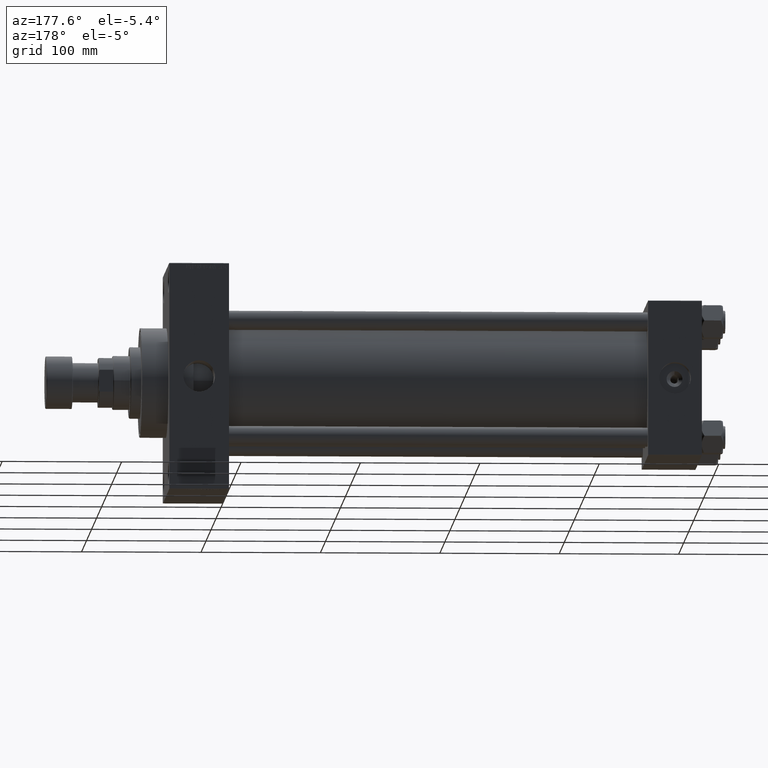
[diagram: clean part render]
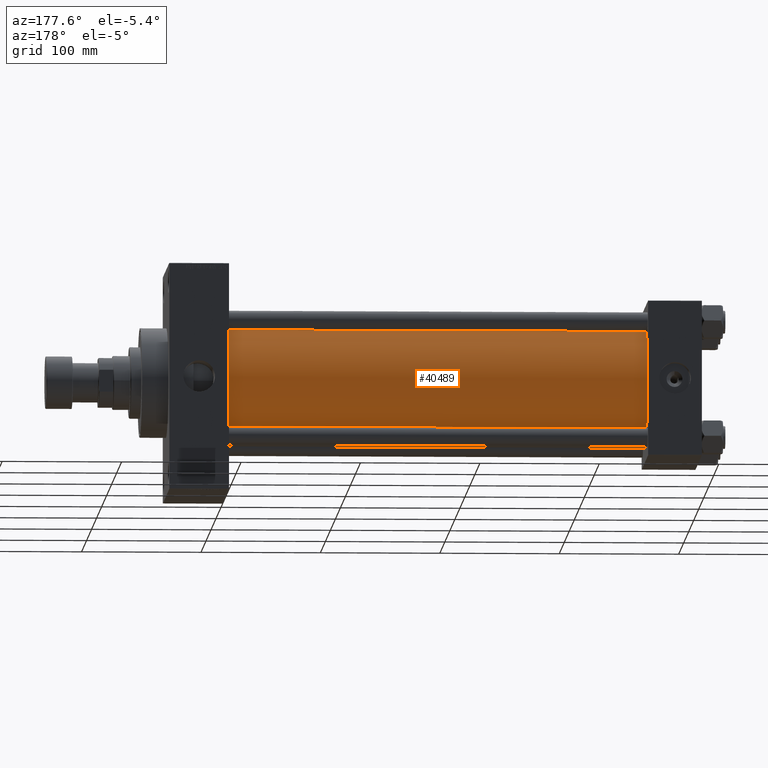
[diagram: same view with one face highlighted and labeled with its STEP entity id]
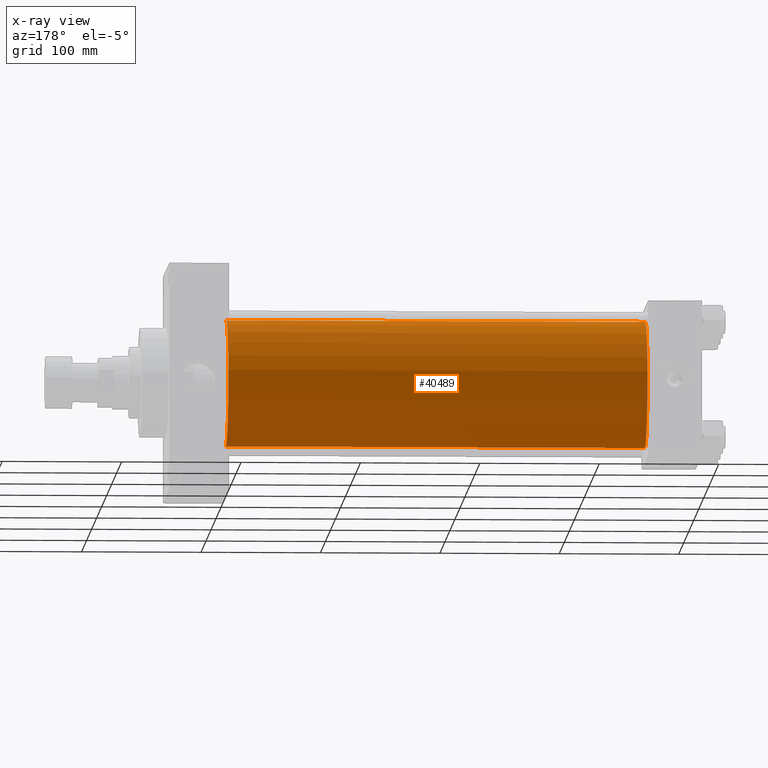
[diagram: x-ray of the same camera — body ghosted, the highlighted face saturated]
A machine part, auxiliary view. The second image highlights one B-rep face of the part: STEP entity #40489.
The next image is the same camera in x-ray: the body ghosted, the highlighted face saturated — about 0% of this face is hidden behind the body in this view.
In plain terms, the highlighted cylindrical surface (partial cylindrical patch) has radius 53 mm, axis along (-1, -0, -0).
Its self-contained STEP definition (entity closure, byte-faithful):
#1573 = EDGE_LOOP ( 'NONE', ( #18022, #4405, #30221, #29435 ) ) ;
#3869 = DIRECTION ( 'NONE',  ( -1.000000000000000000, -0.000000000000000000, -0.000000000000000000 ) ) ;
#4405 = ORIENTED_EDGE ( 'NONE', *, *, #5743, .T. ) ;
#4763 = CARTESIAN_POINT ( 'NONE',  ( 44.99999999999998579, -2.602085213965210642E-15, 53.00000000000000711 ) ) ;
#5743 = EDGE_CURVE ( 'NONE', #28973, #23952, #42628, .T. ) ;
#7538 = FACE_OUTER_BOUND ( 'NONE', #1573, .T. ) ;
#8932 = CARTESIAN_POINT ( 'NONE',  ( 395.9999999999999432, 3.888542821515762466E-15, -53.00000000000000711 ) ) ;
#9548 = DIRECTION ( 'NONE',  ( 0.000000000000000000, 0.000000000000000000, -1.000000000000000000 ) ) ;
#13219 = CARTESIAN_POINT ( 'NONE',  ( 395.9999999999999432, -2.602085213965210642E-15, 0.000000000000000000 ) ) ;
#16442 = LINE ( 'NONE', #16926, #23743 ) ;
#16622 = CARTESIAN_POINT ( 'NONE',  ( 395.9999999999999432, -2.602085213965210642E-15, 53.00000000000000711 ) ) ;
#16926 = CARTESIAN_POINT ( 'NONE',  ( 395.9999999999999432, -2.602085213965210642E-15, 53.00000000000000711 ) ) ;
#17762 = EDGE_CURVE ( 'NONE', #28973, #28180, #38064, .T. ) ;
#17905 = EDGE_CURVE ( 'NONE', #23952, #28566, #40386, .T. ) ;
#18022 = ORIENTED_EDGE ( 'NONE', *, *, #17762, .F. ) ;
#20410 = DIRECTION ( 'NONE',  ( -1.000000000000000000, -0.000000000000000000, -0.000000000000000000 ) ) ;
#22449 = CYLINDRICAL_SURFACE ( 'NONE', #45504, 53.00000000000000711 ) ;
#23743 = VECTOR ( 'NONE', #39386, 1000.000000000000000 ) ;
#23952 = VERTEX_POINT ( 'NONE', #32850 ) ;
#26103 = CARTESIAN_POINT ( 'NONE',  ( 44.99999999999998579, -2.602085213965210642E-15, 0.000000000000000000 ) ) ;
#26588 = CARTESIAN_POINT ( 'NONE',  ( 395.9999999999999432, -2.602085213965210642E-15, 0.000000000000000000 ) ) ;
#27115 = AXIS2_PLACEMENT_3D ( 'NONE', #13219, #28104, #9548 ) ;
#27919 = AXIS2_PLACEMENT_3D ( 'NONE', #26103, #41006, #38079 ) ;
#28104 = DIRECTION ( 'NONE',  ( 1.000000000000000000, 0.000000000000000000, 0.000000000000000000 ) ) ;
#28180 = VERTEX_POINT ( 'NONE', #16622 ) ;
#28566 = VERTEX_POINT ( 'NONE', #4763 ) ;
#28973 = VERTEX_POINT ( 'NONE', #43689 ) ;
#29435 = ORIENTED_EDGE ( 'NONE', *, *, #42259, .F. ) ;
#30221 = ORIENTED_EDGE ( 'NONE', *, *, #17905, .T. ) ;
#32850 = CARTESIAN_POINT ( 'NONE',  ( 44.99999999999998579, 3.888542821515762466E-15, -53.00000000000000711 ) ) ;
#33043 = VECTOR ( 'NONE', #20410, 1000.000000000000000 ) ;
#38064 = CIRCLE ( 'NONE', #27115, 53.00000000000000711 ) ;
#38079 = DIRECTION ( 'NONE',  ( 0.000000000000000000, 0.000000000000000000, 1.000000000000000000 ) ) ;
#39386 = DIRECTION ( 'NONE',  ( -1.000000000000000000, -0.000000000000000000, -0.000000000000000000 ) ) ;
#40386 = CIRCLE ( 'NONE', #27919, 53.00000000000000711 ) ;
#40489 = ADVANCED_FACE ( 'NONE', ( #7538 ), #22449, .T. ) ;
#41006 = DIRECTION ( 'NONE',  ( 1.000000000000000000, -0.000000000000000000, 0.000000000000000000 ) ) ;
#41253 = DIRECTION ( 'NONE',  ( 0.000000000000000000, 0.000000000000000000, 1.000000000000000000 ) ) ;
#42259 = EDGE_CURVE ( 'NONE', #28180, #28566, #16442, .T. ) ;
#42628 = LINE ( 'NONE', #8932, #33043 ) ;
#43689 = CARTESIAN_POINT ( 'NONE',  ( 395.9999999999999432, 3.888542821515762466E-15, -53.00000000000000711 ) ) ;
#45504 = AXIS2_PLACEMENT_3D ( 'NONE', #26588, #3869, #41253 ) ;